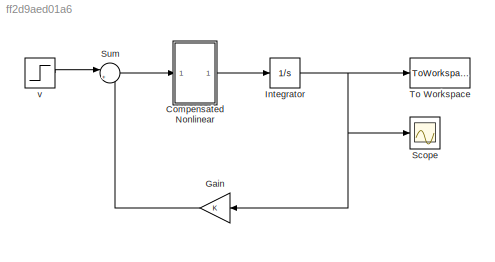
MODEL slx_ff2d9aed01a6
KIND model
CONFIG AbsTol = auto
CONFIG FixedStep = auto
CONFIG MaxStep = auto
CONFIG MinStep = auto
CONFIG RelTol = 1e-3
CONFIG SampleTimeConstraint = Unconstrained
CONFIG Solver = VariableStepAuto
CONFIG SolverMode = Auto
CONFIG SolverName = VariableStepAuto
CONFIG StartTime = 0.0
CONFIG StopTime = 2.28
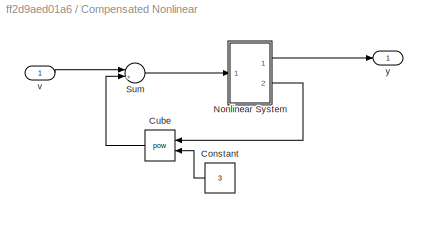
BLOCK [SubSystem] Compensated Nonlinear 
  Ports = [1, 1]
  RequestExecContextInheritance = off
  Variant = off
BLOCK [Constant] Compensated Nonlinear /Constant
  Value = 3
BLOCK [Math] Compensated Nonlinear /Cube
  Operator = pow
  Ports = [2, 1]
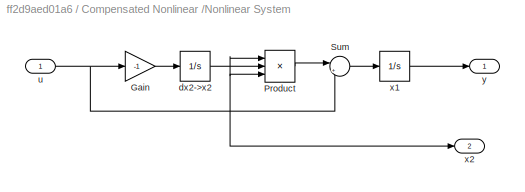
BLOCK [SubSystem] Compensated Nonlinear /Nonlinear System
  Ports = [1, 2]
  RequestExecContextInheritance = off
  Variant = off
BLOCK [Gain] Compensated Nonlinear /Nonlinear System/Gain
  Gain = -1
  OutDataTypeStr = Inherit: Inherit via internal rule
  ParamDataTypeStr = Inherit: Inherit via internal rule
  SaturateOnIntegerOverflow = off
BLOCK [Product] Compensated Nonlinear /Nonlinear System/Product
  InputSameDT = off
  Inputs = 3
  OutDataTypeStr = Inherit: Inherit via internal rule
  Ports = [3, 1]
  RndMeth = Floor
  SaturateOnIntegerOverflow = off
BLOCK [Sum] Compensated Nonlinear /Nonlinear System/Sum
  IconShape = round
  InputSameDT = off
  Inputs = |++
  OutDataTypeStr = Inherit: Inherit via internal rule
  Ports = [2, 1]
  SaturateOnIntegerOverflow = off
BLOCK [Integrator] Compensated Nonlinear /Nonlinear System/dx2->x2 
  InitialCondition = 1e-12
  Ports = [1, 1]
BLOCK [Inport] Compensated Nonlinear /Nonlinear System/u
  IconDisplay = Port number
BLOCK [Integrator] Compensated Nonlinear /Nonlinear System/x1
  InitialCondition = 1e-12
  Ports = [1, 1]
BLOCK [Outport] Compensated Nonlinear /Nonlinear System/x2
  IconDisplay = Port number
  Port = 2
BLOCK [Outport] Compensated Nonlinear /Nonlinear System/y
  IconDisplay = Port number
BLOCK [Sum] Compensated Nonlinear /Sum
  IconShape = round
  InputSameDT = off
  Inputs = |+-
  OutDataTypeStr = Inherit: Inherit via internal rule
  Ports = [2, 1]
  SaturateOnIntegerOverflow = off
BLOCK [Inport] Compensated Nonlinear /v
  IconDisplay = Port number
BLOCK [Outport] Compensated Nonlinear /y
  IconDisplay = Port number
BLOCK [Gain] Gain
  OutDataTypeStr = Inherit: Inherit via internal rule
  ParamDataTypeStr = Inherit: Inherit via internal rule
  SaturateOnIntegerOverflow = off
BLOCK [Integrator] Integrator
  Ports = [1, 1]
BLOCK [Scope] Scope
  Ports = [1]
  ScopeSpecificationString = Simulink.scopes.TimeScopeBlockCfg('CurrentConfiguration', extmgr.ConfigurationSet(extmgr.Configuration('Core','General UI',true),extmgr.Configuration('Core','Source UI',true),extmgr.Configuration('Sources','WiredSimulink',true),extmgr.Configuration('Visuals','Time Domain',true,'SerializedDisplays',{struct('MinYLimReal','-0.08916','MaxYLimReal','0.80245','YLabelReal','','MinYLimMag','0.00000','MaxY...<+1330ch>
BLOCK [Sum] Sum
  IconShape = round
  InputSameDT = off
  Inputs = |+-
  OutDataTypeStr = Inherit: Inherit via internal rule
  Ports = [2, 1]
  SaturateOnIntegerOverflow = off
BLOCK [ToWorkspace] To Workspace
  FixptAsFi = on
  MaxDataPoints = inf
  Ports = [1]
  SampleTime = -1
  Save2DSignal = 3-D array (concatenate along third dimension)
  SaveFormat = Timeseries
  VariableName = y
BLOCK [Step] v
  SampleTime = 0
LINE Compensated Nonlinear /Constant:1 -> Compensated Nonlinear /Cube:2
LINE Compensated Nonlinear /Cube:1 -> Compensated Nonlinear /Sum:2
LINE Compensated Nonlinear /Nonlinear System/Gain:1 -> Compensated Nonlinear /Nonlinear System/dx2->x2 :1
LINE Compensated Nonlinear /Nonlinear System/Product:1 -> Compensated Nonlinear /Nonlinear System/Sum:1
LINE Compensated Nonlinear /Nonlinear System/Sum:1 -> Compensated Nonlinear /Nonlinear System/x1:1
NET Compensated Nonlinear /Nonlinear System/dx2->x2 :1 -> Compensated Nonlinear /Nonlinear System/Product:1, Compensated Nonlinear /Nonlinear System/Product:2, Compensated Nonlinear /Nonlinear System/Product:3, Compensated Nonlinear /Nonlinear System/x2:1
NET Compensated Nonlinear /Nonlinear System/u:1 -> Compensated Nonlinear /Nonlinear System/Gain:1, Compensated Nonlinear /Nonlinear System/Sum:2
LINE Compensated Nonlinear /Nonlinear System/x1:1 -> Compensated Nonlinear /Nonlinear System/y:1
LINE Compensated Nonlinear /Nonlinear System:1 -> Compensated Nonlinear /y:1
LINE Compensated Nonlinear /Nonlinear System:2 -> Compensated Nonlinear /Cube:1
LINE Compensated Nonlinear /Sum:1 -> Compensated Nonlinear /Nonlinear System:1
LINE Compensated Nonlinear /v:1 -> Compensated Nonlinear /Sum:1
LINE Compensated Nonlinear :1 -> Integrator:1
LINE Gain:1 -> Sum:2
NET Integrator:1 -> Gain:1, Scope:1, To Workspace:1
LINE Sum:1 -> Compensated Nonlinear :1
LINE v:1 -> Sum:1
note: NET lines group one-source signal fan-out (src -> all destinations, sorted); 1:1 wires keep LINE
